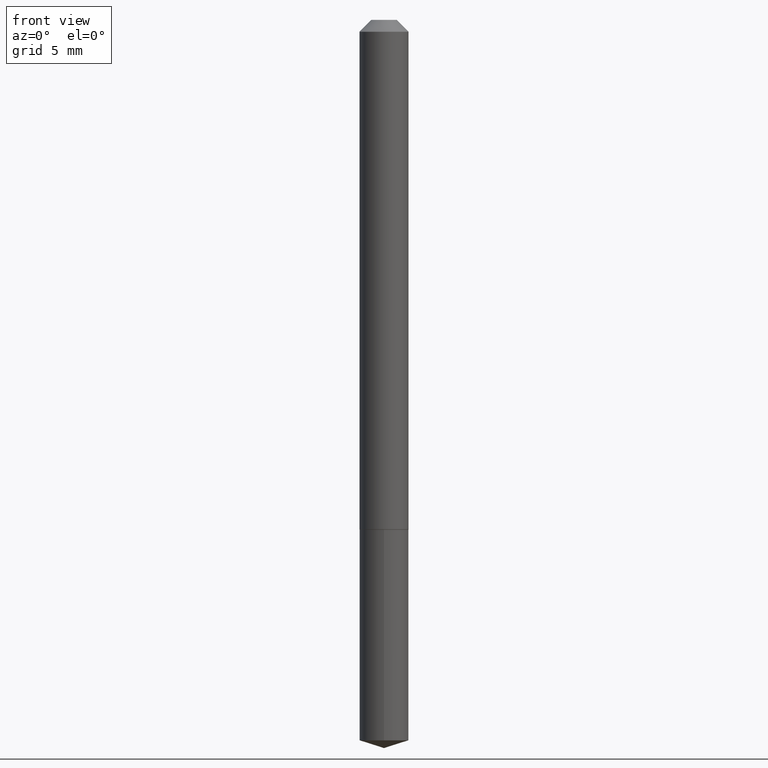
[diagram: clean part render]
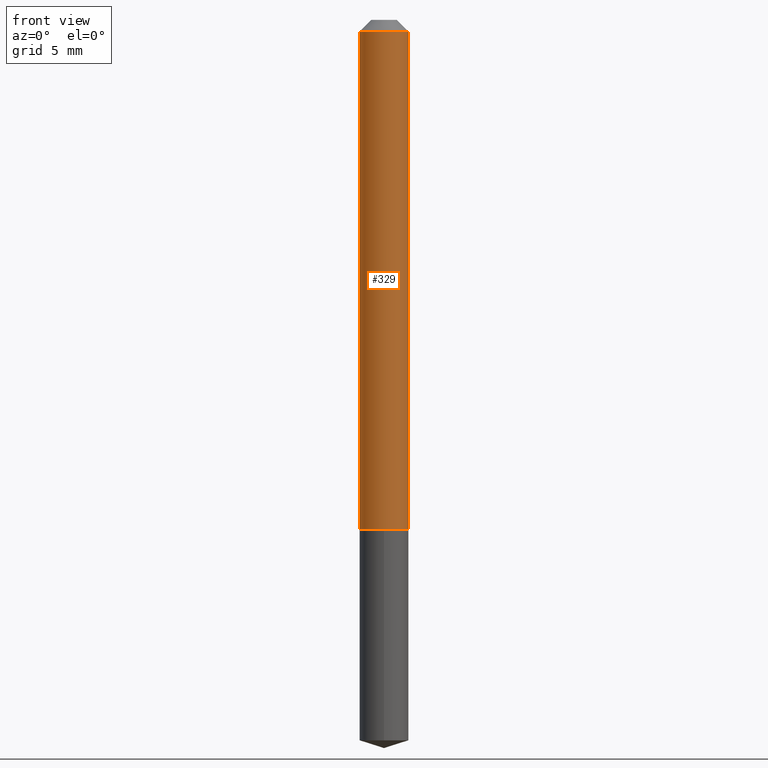
[diagram: same view with one face highlighted and labeled with its STEP entity id]
A machine part, front view. The second image highlights one B-rep face of the part: STEP entity #329.
In plain terms, the highlighted cylindrical surface (edge-blend (fillet) strip) has radius 1.6497 mm, axis along (-0, 0, 1).
Its self-contained STEP definition (entity closure, byte-faithful):
#29 = EDGE_LOOP ( 'NONE', ( #170, #302, #125, #332 ) ) ;
#42 = DIRECTION ( 'NONE',  ( -2.445468806185136877E-29, 3.491481338843145188E-15, 1.000000000000000000 ) ) ;
#46 = CARTESIAN_POINT ( 'NONE',  ( 3.300893794588698070E-29, -4.712801511170477994E-15, -1.349800000000000111 ) ) ;
#48 = DIRECTION ( 'NONE',  ( 1.000000000000000000, -6.982962677686267499E-15, 4.876176775795936914E-29 ) ) ;
#54 = CARTESIAN_POINT ( 'NONE',  ( -0.06494999999999999385, -1.949457644628476450E-15, -0.03125000000000020123 ) ) ;
#62 = DIRECTION ( 'NONE',  ( -2.445468806185136597E-29, 3.491481338843145583E-15, 1.000000000000000000 ) ) ;
#68 = DIRECTION ( 'NONE',  ( 1.000000000000000000, -6.982962677686265133E-15, 0.000000000000000000 ) ) ;
#93 = VERTEX_POINT ( 'NONE', #272 ) ;
#125 = ORIENTED_EDGE ( 'NONE', *, *, #185, .T. ) ;
#129 = CIRCLE ( 'NONE', #186, 0.06494999999999999385 ) ;
#131 = CARTESIAN_POINT ( 'NONE',  ( -0.06495000000000016038, -4.251304004294291685E-15, -1.349800000000000111 ) ) ;
#132 = DIRECTION ( 'NONE',  ( -2.445468806185136597E-29, 3.491481338843145583E-15, 1.000000000000000000 ) ) ;
#134 = EDGE_CURVE ( 'NONE', #241, #174, #336, .T. ) ;
#135 = VECTOR ( 'NONE', #299, 39.37007874015748143 ) ;
#167 = EDGE_CURVE ( 'NONE', #241, #350, #320, .T. ) ;
#170 = ORIENTED_EDGE ( 'NONE', *, *, #167, .F. ) ;
#174 = VERTEX_POINT ( 'NONE', #363 ) ;
#181 = AXIS2_PLACEMENT_3D ( 'NONE', #229, #316, #48 ) ;
#182 = VECTOR ( 'NONE', #42, 39.37007874015748143 ) ;
#185 = EDGE_CURVE ( 'NONE', #174, #93, #304, .T. ) ;
#186 = AXIS2_PLACEMENT_3D ( 'NONE', #325, #62, #68 ) ;
#188 = CARTESIAN_POINT ( 'NONE',  ( -0.06495000000000007712, 4.614975068761856187E-16, -3.194848341120565109E-30 ) ) ;
#209 = CYLINDRICAL_SURFACE ( 'NONE', #181, 0.06495000000000007712 ) ;
#229 = CARTESIAN_POINT ( 'NONE',  ( 0.000000000000000000, 0.000000000000000000, 0.000000000000000000 ) ) ;
#241 = VERTEX_POINT ( 'NONE', #131 ) ;
#258 = DIRECTION ( 'NONE',  ( 1.000000000000000000, -6.982962677686265922E-15, 0.000000000000000000 ) ) ;
#272 = CARTESIAN_POINT ( 'NONE',  ( 0.06494999999999999385, -5.626522177545718995E-16, -0.03125000000000020123 ) ) ;
#277 = EDGE_CURVE ( 'NONE', #350, #93, #129, .T. ) ;
#299 = DIRECTION ( 'NONE',  ( -2.445468806185136877E-29, 3.491481338843145188E-15, 1.000000000000000000 ) ) ;
#302 = ORIENTED_EDGE ( 'NONE', *, *, #134, .T. ) ;
#304 = LINE ( 'NONE', #340, #182 ) ;
#310 = AXIS2_PLACEMENT_3D ( 'NONE', #46, #132, #258 ) ;
#316 = DIRECTION ( 'NONE',  ( -2.445468806185136597E-29, 3.491481338843145583E-15, 1.000000000000000000 ) ) ;
#320 = LINE ( 'NONE', #188, #135 ) ;
#325 = CARTESIAN_POINT ( 'NONE',  ( 7.642090019328600035E-31, -1.091087918388489897E-16, -0.03125000000000020123 ) ) ;
#329 = ADVANCED_FACE ( 'NONE', ( #352 ), #209, .T. ) ;
#332 = ORIENTED_EDGE ( 'NONE', *, *, #277, .F. ) ;
#336 = CIRCLE ( 'NONE', #310, 0.06495000000000016038 ) ;
#340 = CARTESIAN_POINT ( 'NONE',  ( 0.06495000000000007712, -4.535434259157235877E-16, 3.167076815879464619E-30 ) ) ;
#350 = VERTEX_POINT ( 'NONE', #54 ) ;
#352 = FACE_OUTER_BOUND ( 'NONE', #29, .T. ) ;
#363 = CARTESIAN_POINT ( 'NONE',  ( 0.06495000000000016038, -5.166344937086201976E-15, -1.349800000000000111 ) ) ;